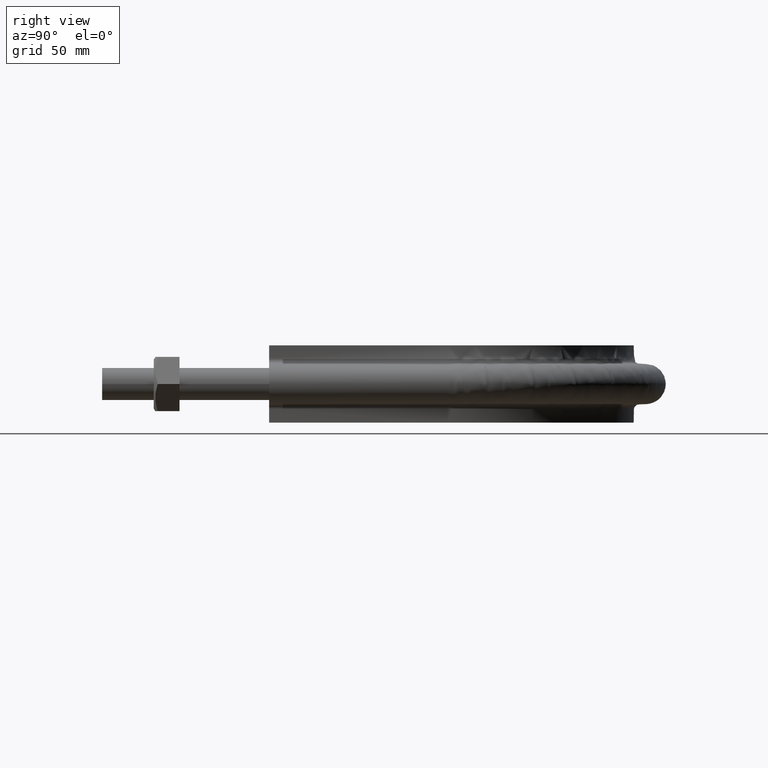
[diagram: clean part render]
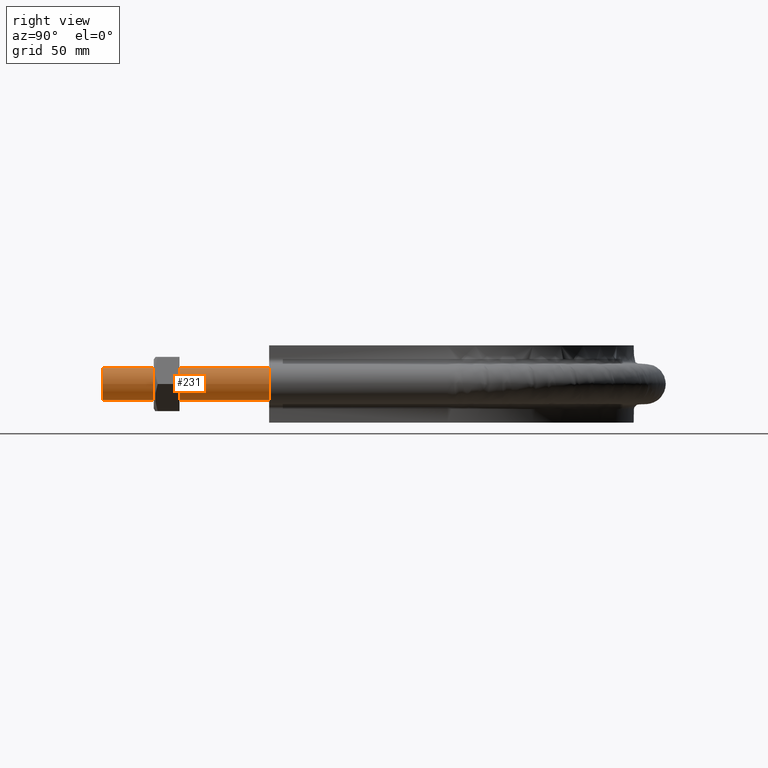
[diagram: same view with one face highlighted and labeled with its STEP entity id]
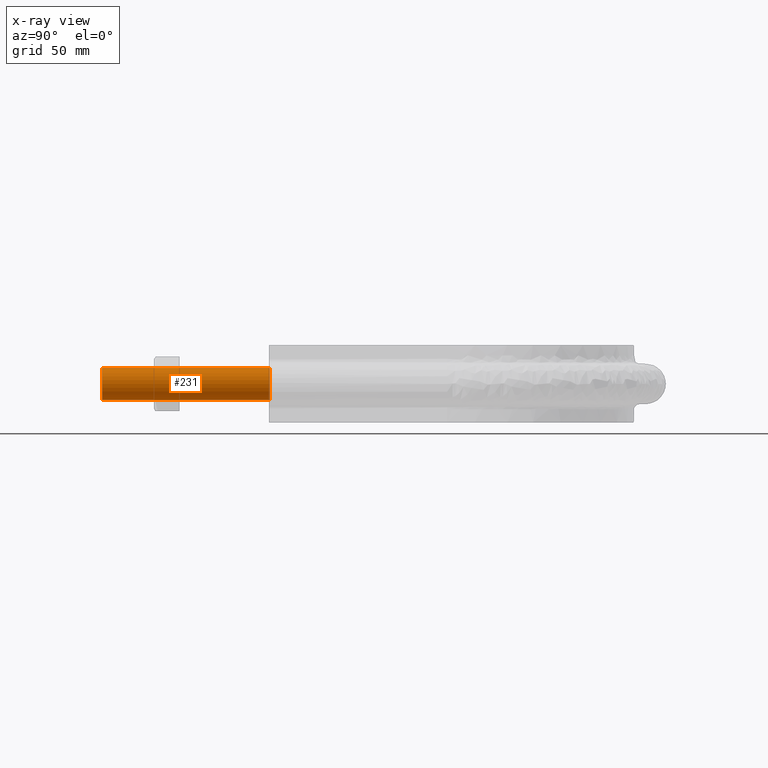
[diagram: x-ray of the same camera — body ghosted, the highlighted face saturated]
A machine part, right view. The second image highlights one B-rep face of the part: STEP entity #231.
The next image is the same camera in x-ray: the body ghosted, the highlighted face saturated — about 0% of this face is hidden behind the body in this view.
In plain terms, the highlighted cylindrical surface (bore or boss wall) has radius 6.25 mm, axis along (0, 1, -0).
Its self-contained STEP definition (entity closure, byte-faithful):
#231 = ADVANCED_FACE( '', ( #288, #289 ), #290, .T. );
#288 = FACE_OUTER_BOUND( '', #1230, .T. );
#289 = FACE_OUTER_BOUND( '', #1231, .T. );
#290 = CYLINDRICAL_SURFACE( '', #1232, 6.25000000000001 );
#1230 = EDGE_LOOP( '', ( #1373 ) );
#1231 = EDGE_LOOP( '', ( #1374 ) );
#1232 = AXIS2_PLACEMENT_3D( '', #1375, #1376, #1377 );
#1373 = ORIENTED_EDGE( '', *, *, #1566, .T. );
#1374 = ORIENTED_EDGE( '', *, *, #1565, .F. );
#1375 = CARTESIAN_POINT( '', ( 77.0000000000000, 65.0000000000000, -1.98998532496136E-014 ) );
#1376 = DIRECTION( '', ( 2.44921270764476E-016, 1.00000000000000, -3.06151588455594E-016 ) );
#1377 = DIRECTION( '', ( 1.00000000000000, -2.44921270764475E-016, 0.000000000000000 ) );
#1565 = EDGE_CURVE( '', #1645, #1645, #1646, .T. );
#1566 = EDGE_CURVE( '', #1647, #1647, #1648, .T. );
#1645 = VERTEX_POINT( '', #1927 );
#1646 = CIRCLE( '', #1928, 6.25000000000001 );
#1647 = VERTEX_POINT( '', #1929 );
#1648 = CIRCLE( '', #1930, 6.25000000000001 );
#1927 = CARTESIAN_POINT( '', ( 83.2500000000000, -1.09602268667103E-014, 0.000000000000000 ) );
#1928 = AXIS2_PLACEMENT_3D( '', #2179, #2180, #2181 );
#1929 = CARTESIAN_POINT( '', ( 83.2500000000000, 65.0000000000000, -1.98998532496136E-014 ) );
#1930 = AXIS2_PLACEMENT_3D( '', #2182, #2183, #2184 );
#2179 = CARTESIAN_POINT( '', ( 77.0000000000000, -9.42946892443230E-015, 4.71701209382677E-046 ) );
#2180 = DIRECTION( '', ( -2.44921270764475E-016, -1.00000000000000, 3.06151588455594E-016 ) );
#2181 = DIRECTION( '', ( 1.00000000000000, -2.44921270764475E-016, -7.54721935012283E-047 ) );
#2182 = CARTESIAN_POINT( '', ( 77.0000000000000, 65.0000000000000, -1.98998532496136E-014 ) );
#2183 = DIRECTION( '', ( -2.44921270764475E-016, -1.00000000000000, 3.06151588455594E-016 ) );
#2184 = DIRECTION( '', ( 1.00000000000000, -2.44921270764475E-016, -7.54721935012283E-047 ) );